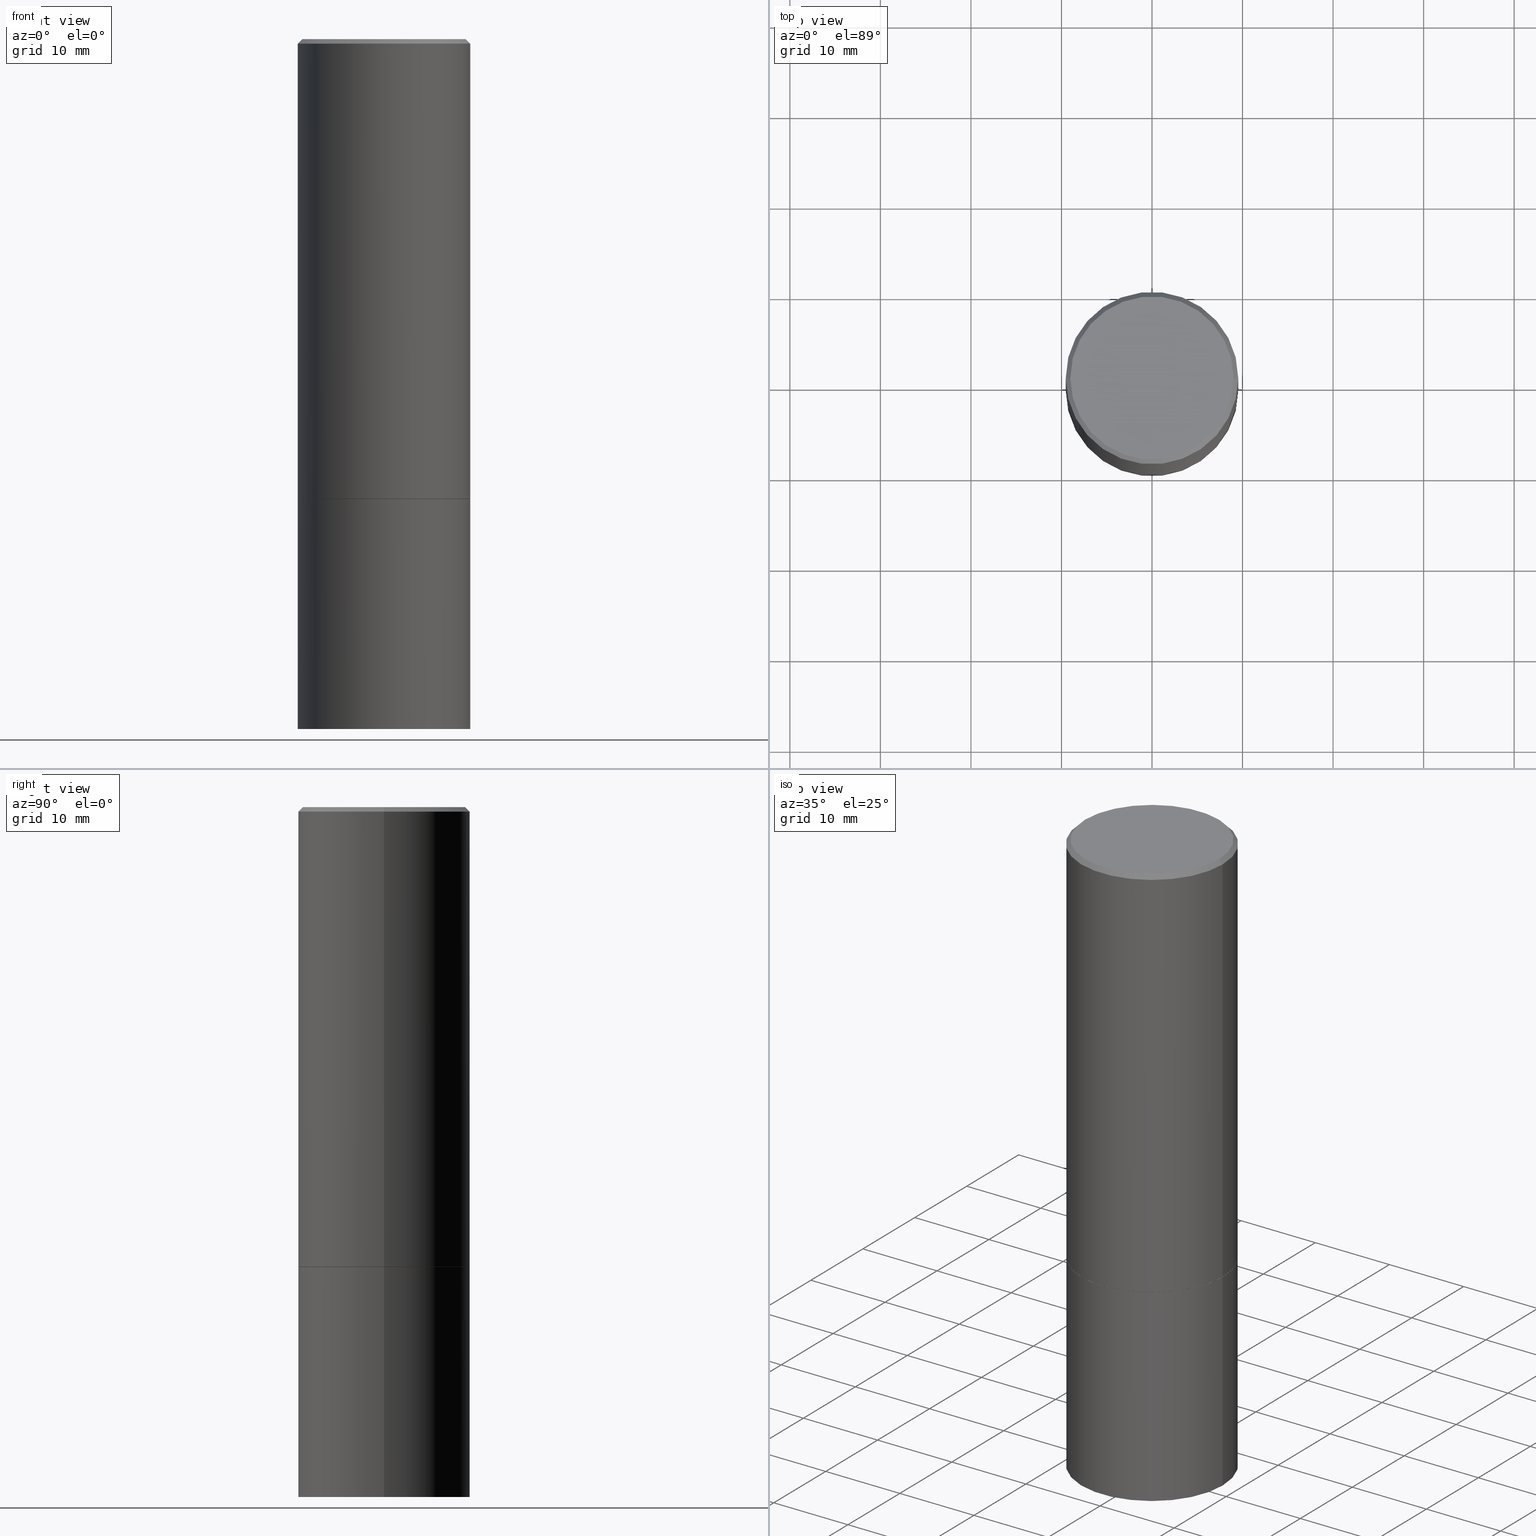
[diagram: canonical four-view strip — front | top / right | iso, engineering-drawing reading convention]
A machine part, canonical four-view strip (front | top / right | iso — engineering-drawing reading convention). The complete STEP part file that produces these views, byte-faithful:
ISO-10303-21;
HEADER;
FILE_DESCRIPTION (( 'STEP AP203' ),
    '1' );
FILE_NAME ('31662.STEP',
    '2024-02-27T13:14:22',
    ( '' ),
    ( '' ),
    'SwSTEP 2.0',
    'SolidWorks 2023',
    '' );
FILE_SCHEMA (( 'CONFIG_CONTROL_DESIGN' ));
ENDSEC;

DATA;
#1 = PRODUCT_RELATED_PRODUCT_CATEGORY ( 'detail', '', ( #355 ) ) ;
#2 = DIRECTION ( 'NONE',  ( 0.000000000000000000, 0.000000000000000000, 1.000000000000000000 ) ) ;
#3 = CARTESIAN_POINT ( 'NONE',  ( -0.3749999999999999445, -8.601151524617780590E-16, -1.999000000000000110 ) ) ;
#4 = CIRCLE ( 'NONE', #238, 0.3749999999999996669 ) ;
#5 = VECTOR ( 'NONE', #23, 39.37007874015748143 ) ;
#6 = APPLICATION_PROTOCOL_DEFINITION ( 'international standard', 'config_control_design', 1994, #280 ) ;
#7 = CARTESIAN_POINT ( 'NONE',  ( 0.000000000000000000, 0.000000000000000000, 0.000000000000000000 ) ) ;
#8 = DIRECTION ( 'NONE',  ( 1.000000000000000000, 0.000000000000000000, 0.000000000000000000 ) ) ;
#9 = EDGE_CURVE ( 'NONE', #49, #111, #161, .T. ) ;
#10 = DATE_AND_TIME ( #322, #129 ) ;
#11 = DIRECTION ( 'NONE',  ( 0.7071067811865472397, -7.319954787623254468E-15, -0.7071067811865477948 ) ) ;
#12 = PRODUCT_DEFINITION_FORMATION_WITH_SPECIFIED_SOURCE ( 'ANY', '', #355, .NOT_KNOWN. ) ;
#13 = ADVANCED_FACE ( 'NONE', ( #243 ), #357, .F. ) ;
#14 = DIRECTION ( 'NONE',  ( -2.445468806185136597E-29, 3.491481338843145583E-15, 1.000000000000000000 ) ) ;
#15 = AXIS2_PLACEMENT_3D ( 'NONE', #159, #262, #287 ) ;
#16 = ORIENTED_EDGE ( 'NONE', *, *, #123, .F. ) ;
#17 = CYLINDRICAL_SURFACE ( 'NONE', #15, 0.3749999999999998335 ) ;
#18 = EDGE_LOOP ( 'NONE', ( #45, #333, #269, #364 ) ) ;
#19 = FACE_OUTER_BOUND ( 'NONE', #244, .T. ) ;
#20 = ORIENTED_EDGE ( 'NONE', *, *, #199, .T. ) ;
#21 = ORIENTED_EDGE ( 'NONE', *, *, #165, .F. ) ;
#22 = APPROVAL_PERSON_ORGANIZATION ( #236, #145, #345 ) ;
#23 = DIRECTION ( 'NONE',  ( 0.7071067811864267805, -2.468850131080992517E-15, 0.7071067811866682540 ) ) ;
#24 = PERSON ( 'UNSPECIFIED', 'UNSPECIFIED', 'UNSPECIFIED', ('UNSPECIFIED'), ('UNSPECIFIED'), ('UNSPECIFIED') ) ;
#25 = EDGE_LOOP ( 'NONE', ( #304, #293, #299, #160 ) ) ;
#26 = FACE_OUTER_BOUND ( 'NONE', #77, .T. ) ;
#27 = EDGE_CURVE ( 'NONE', #143, #296, #29, .T. ) ;
#28 = CARTESIAN_POINT ( 'NONE',  ( 0.3749999999999996669, -2.642516375941185662E-15, -0.02000000000000007327 ) ) ;
#29 = CIRCLE ( 'NONE', #291, 0.3739999999999999991 ) ;
#30 = LINE ( 'NONE', #198, #38 ) ;
#31 = EDGE_CURVE ( 'NONE', #222, #49, #151, .T. ) ;
#32 = APPROVAL_DATE_TIME ( #36, #145 ) ;
#33 = PERSON_AND_ORGANIZATION ( #24, #323 ) ;
#34 = PERSON_AND_ORGANIZATION ( #24, #323 ) ;
#35 = LINE ( 'NONE', #356, #44 ) ;
#36 = DATE_AND_TIME ( #281, #218 ) ;
#37 = AXIS2_PLACEMENT_3D ( 'NONE', #224, #267, #216 ) ;
#38 = VECTOR ( 'NONE', #142, 39.37007874015748143 ) ;
#39 = CC_DESIGN_DATE_AND_TIME_ASSIGNMENT ( #117, #184, ( #56 ) ) ;
#40 = ORIENTED_EDGE ( 'NONE', *, *, #173, .F. ) ;
#41 = ORIENTED_EDGE ( 'NONE', *, *, #266, .T. ) ;
#42 = CARTESIAN_POINT ( 'NONE',  ( -1.043851414335219820E-46, 1.490343170380447200E-32, 4.268512490100411279E-18 ) ) ;
#43 = CC_DESIGN_PERSON_AND_ORGANIZATION_ASSIGNMENT ( #33, #285, ( #12 ) ) ;
#44 = VECTOR ( 'NONE', #11, 39.37007874015748143 ) ;
#45 = ORIENTED_EDGE ( 'NONE', *, *, #66, .T. ) ;
#46 = DIRECTION ( 'NONE',  ( 1.000000000000000000, -6.982962677686265922E-15, 4.876231632511992667E-29 ) ) ;
#47 = ORIENTED_EDGE ( 'NONE', *, *, #82, .F. ) ;
#48 = DIRECTION ( 'NONE',  ( 1.000000000000000000, -6.982962677686268288E-15, 0.000000000000000000 ) ) ;
#49 = VERTEX_POINT ( 'NONE', #344 ) ;
#50 = AXIS2_PLACEMENT_3D ( 'NONE', #352, #104, #70 ) ;
#51 = VERTEX_POINT ( 'NONE', #312 ) ;
#52 = CARTESIAN_POINT ( 'NONE',  ( 4.888492143564088712E-29, -6.979471196347448158E-15, -1.999000000000000110 ) ) ;
#53 = CARTESIAN_POINT ( 'NONE',  ( -0.3750000000000000555, -6.064168088007489246E-15, -2.000000000000000444 ) ) ;
#54 = DIRECTION ( 'NONE',  ( 1.000000000000000000, -6.982962677686266711E-15, 0.000000000000000000 ) ) ;
#55 = CARTESIAN_POINT ( 'NONE',  ( 2.618611004132423381E-15, 0.3749999999999895639, -3.000000000000001332 ) ) ;
#56 = PRODUCT_DEFINITION ( 'UNKNOWN', '', #12, #302 ) ;
#57 = DIRECTION ( 'NONE',  ( 1.000000000000000000, -6.982962677686268288E-15, 0.000000000000000000 ) ) ;
#58 = PERSON_AND_ORGANIZATION ( #24, #323 ) ;
#59 = FACE_OUTER_BOUND ( 'NONE', #113, .T. ) ;
#60 = PERSON_AND_ORGANIZATION ( #24, #323 ) ;
#61 = CYLINDRICAL_SURFACE ( 'NONE', #278, 0.3750000000000000555 ) ;
#62 = PRODUCT_DEFINITION_SHAPE ( 'NONE', 'NONE',  #56 ) ;
#63 = APPROVAL_ROLE ( '' ) ;
#64 = CONICAL_SURFACE ( 'NONE', #239, 0.3739999999999999991, 0.7853981633972775267 ) ;
#65 = DATE_TIME_ROLE ( 'classification_date' ) ;
#66 = EDGE_CURVE ( 'NONE', #222, #67, #152, .T. ) ;
#67 = VERTEX_POINT ( 'NONE', #91 ) ;
#68 = AXIS2_PLACEMENT_3D ( 'NONE', #315, #183, #258 ) ;
#69 = LOCAL_TIME ( 8, 14, 22.00000000000000000, #213 ) ;
#70 = DIRECTION ( 'NONE',  ( -1.000000000000000000, 6.982962677686265922E-15, -4.876176775795935793E-29 ) ) ;
#71 = ADVANCED_FACE ( 'NONE', ( #59 ), #319, .F. ) ;
#72 = CARTESIAN_POINT ( 'NONE',  ( 4.890937612370290675E-31, -6.982962677686316261E-17, -0.02000000000000007327 ) ) ;
#73 = DIRECTION ( 'NONE',  ( -1.000000000000000000, 6.982962677686265922E-15, -4.876176775795935793E-29 ) ) ;
#74 = CARTESIAN_POINT ( 'NONE',  ( 4.890937612370290675E-31, -6.982962677686316261E-17, -0.02000000000000007327 ) ) ;
#75 = AXIS2_PLACEMENT_3D ( 'NONE', #256, #176, #148 ) ;
#76 = AXIS2_PLACEMENT_3D ( 'NONE', #200, #314, #48 ) ;
#77 = EDGE_LOOP ( 'NONE', ( #135, #41, #220, #248 ) ) ;
#78 = MANIFOLD_SOLID_BREP ( 'Body-Move/Copy2[1]', #307 ) ;
#79 = CARTESIAN_POINT ( 'NONE',  ( 0.3739999999999999991, -9.594590719140957534E-15, -2.000000000000000444 ) ) ;
#80 = ORIENTED_EDGE ( 'NONE', *, *, #155, .T. ) ;
#81 =( CONVERSION_BASED_UNIT ( 'INCH', #175 ) LENGTH_UNIT ( ) NAMED_UNIT ( #240 ) );
#82 = EDGE_CURVE ( 'NONE', #296, #143, #185, .T. ) ;
#83 = ORIENTED_EDGE ( 'NONE', *, *, #264, .T. ) ;
#84 = APPLICATION_CONTEXT ( 'configuration controlled 3d designs of mechanical parts and assemblies' ) ;
#85 = FACE_OUTER_BOUND ( 'NONE', #25, .T. ) ;
#86 = VECTOR ( 'NONE', #310, 39.37007874015748143 ) ;
#87 = AXIS2_PLACEMENT_3D ( 'NONE', #99, #2, #8 ) ;
#88 = VERTEX_POINT ( 'NONE', #3 ) ;
#89 = CARTESIAN_POINT ( 'NONE',  ( -0.3739999999999999991, -4.325532845943518054E-15, -2.000000000000000444 ) ) ;
#90 = CARTESIAN_POINT ( 'NONE',  ( 4.890937612370274875E-29, -6.982962677686292743E-15, -2.000000000000000444 ) ) ;
#91 = CARTESIAN_POINT ( 'NONE',  ( -0.3750000000000000555, -6.064168088007489246E-15, -3.000000000000000444 ) ) ;
#92 = APPROVAL_DATE_TIME ( #10, #115 ) ;
#93 = FACE_OUTER_BOUND ( 'NONE', #301, .T. ) ;
#94 = ADVANCED_FACE ( 'NONE', ( #202 ), #61, .T. ) ;
#95 = SHAPE_DEFINITION_REPRESENTATION ( #62, #348 ) ;
#96 = CARTESIAN_POINT ( 'NONE',  ( -1.043851414335219820E-46, 1.490343170380447200E-32, 4.268512490100411279E-18 ) ) ;
#97 = CLOSED_SHELL ( 'NONE', ( #294, #338, #242, #128, #158, #354, #71, #13 ) ) ;
#98 = LOCAL_TIME ( 8, 14, 22.00000000000000000, #182 ) ;
#99 = CARTESIAN_POINT ( 'NONE',  ( 0.000000000000000000, 0.000000000000000000, 0.000000000000000000 ) ) ;
#100 = ADVANCED_FACE ( 'NONE', ( #284 ), #124, .T. ) ;
#101 = AXIS2_PLACEMENT_3D ( 'NONE', #55, #138, #116 ) ;
#102 = DIRECTION ( 'NONE',  ( 2.445468806185136597E-29, -3.491481338843145583E-15, -1.000000000000000000 ) ) ;
#103 = ORIENTED_EDGE ( 'NONE', *, *, #260, .F. ) ;
#104 = DIRECTION ( 'NONE',  ( 2.438088387897960049E-29, -3.491481338843145188E-15, -1.000000000000000000 ) ) ;
#105 = CARTESIAN_POINT ( 'NONE',  ( 2.478951750578621842E-15, 0.3549999999999996492, -1.237341619044265047E-15 ) ) ;
#106 = CARTESIAN_POINT ( 'NONE',  ( 0.3549999999999996492, -2.538996582575038287E-15, 4.268512490117958041E-18 ) ) ;
#107 = VERTEX_POINT ( 'NONE', #255 ) ;
#108 = ORIENTED_EDGE ( 'NONE', *, *, #31, .T. ) ;
#109 = LINE ( 'NONE', #225, #5 ) ;
#110 = EDGE_CURVE ( 'NONE', #107, #172, #235, .T. ) ;
#111 = VERTEX_POINT ( 'NONE', #53 ) ;
#112 = CARTESIAN_POINT ( 'NONE',  ( 7.336406418555409790E-29, -1.047444401652943635E-14, -3.000000000000000444 ) ) ;
#113 = EDGE_LOOP ( 'NONE', ( #47, #136 ) ) ;
#114 = DIRECTION ( 'NONE',  ( 1.000000000000000000, -6.982962677686264344E-15, 0.000000000000000000 ) ) ;
#115 = APPROVAL ( #325, 'UNSPECIFIED' ) ;
#116 = DIRECTION ( 'NONE',  ( -1.000000000000000000, 6.982962677686265922E-15, -4.876176775795935793E-29 ) ) ;
#117 = DATE_AND_TIME ( #122, #69 ) ;
#118 = PERSON_AND_ORGANIZATION ( #24, #323 ) ;
#119 = DIRECTION ( 'NONE',  ( -2.445468806185136597E-29, 3.491481338843145583E-15, 1.000000000000000000 ) ) ;
#120 = CONICAL_SURFACE ( 'NONE', #353, 0.3749999999999996669, 0.7853981633974479459 ) ;
#121 = CC_DESIGN_APPROVAL ( #115, ( #12 ) ) ;
#122 = CALENDAR_DATE ( 2024, 27, 2 ) ;
#123 = EDGE_CURVE ( 'NONE', #193, #107, #350, .T. ) ;
#124 = CYLINDRICAL_SURFACE ( 'NONE', #68, 0.3750000000000000555 ) ;
#125 = PERSON_AND_ORGANIZATION_ROLE ( 'classification_officer' ) ;
#126 = CALENDAR_DATE ( 2024, 27, 2 ) ;
#127 = PLANE ( 'NONE',  #50 ) ;
#128 = ADVANCED_FACE ( 'NONE', ( #19 ), #120, .T. ) ;
#129 = LOCAL_TIME ( 8, 14, 22.00000000000000000, #289 ) ;
#130 = EDGE_LOOP ( 'NONE', ( #335, #103 ) ) ;
#131 = UNCERTAINTY_MEASURE_WITH_UNIT (LENGTH_MEASURE( 1.000000000000000082E-05 ), #81, 'distance_accuracy_value', 'NONE');
#132 = CARTESIAN_POINT ( 'NONE',  ( 4.890937612370273754E-29, -6.982962677686291954E-15, -2.000000000000000444 ) ) ;
#133 = ORIENTED_EDGE ( 'NONE', *, *, #110, .F. ) ;
#134 = DIRECTION ( 'NONE',  ( 1.000000000000000000, -6.982962677686265922E-15, 4.876231632511992667E-29 ) ) ;
#135 = ORIENTED_EDGE ( 'NONE', *, *, #228, .T. ) ;
#136 = ORIENTED_EDGE ( 'NONE', *, *, #27, .F. ) ;
#137 = CC_DESIGN_PERSON_AND_ORGANIZATION_ASSIGNMENT ( #229, #288, ( #12 ) ) ;
#138 = DIRECTION ( 'NONE',  ( 2.438088387897960049E-29, -3.491481338843145188E-15, -1.000000000000000000 ) ) ;
#139 = VECTOR ( 'NONE', #180, 39.37007874015748143 ) ;
#140 = APPROVAL_PERSON_ORGANIZATION ( #34, #181, #63 ) ;
#141 = ORIENTED_EDGE ( 'NONE', *, *, #110, .T. ) ;
#142 = DIRECTION ( 'NONE',  ( -2.445468806185136877E-29, 3.491481338843145188E-15, 1.000000000000000000 ) ) ;
#143 = VERTEX_POINT ( 'NONE', #297 ) ;
#144 = DIRECTION ( 'NONE',  ( 1.000000000000000000, -6.982962677686264344E-15, 0.000000000000000000 ) ) ;
#145 = APPROVAL ( #179, 'UNSPECIFIED' ) ;
#146 = FACE_OUTER_BOUND ( 'NONE', #157, .T. ) ;
#147 = CIRCLE ( 'NONE', #254, 0.3549999999999996492 ) ;
#148 = DIRECTION ( 'NONE',  ( 1.000000000000000000, -6.982962677686265922E-15, 4.876176775795935793E-29 ) ) ;
#149 = DATE_AND_TIME ( #366, #98 ) ;
#150 = CARTESIAN_POINT ( 'NONE',  ( 7.336406418555409790E-29, -1.047444401652943635E-14, -3.000000000000000444 ) ) ;
#151 = LINE ( 'NONE', #233, #139 ) ;
#152 = CIRCLE ( 'NONE', #211, 0.3750000000000000555 ) ;
#153 =( GEOMETRIC_REPRESENTATION_CONTEXT ( 3 ) GLOBAL_UNCERTAINTY_ASSIGNED_CONTEXT ( ( #131 ) ) GLOBAL_UNIT_ASSIGNED_CONTEXT ( ( #81, #196, #305 ) ) REPRESENTATION_CONTEXT ( 'NONE', 'WORKASPACE' ) );
#154 = SECURITY_CLASSIFICATION_LEVEL ( 'unclassified' ) ;
#155 = EDGE_CURVE ( 'NONE', #172, #306, #4, .T. ) ;
#156 = AXIS2_PLACEMENT_3D ( 'NONE', #52, #174, #144 ) ;
#157 = EDGE_LOOP ( 'NONE', ( #16, #189, #20, #133 ) ) ;
#158 = ADVANCED_FACE ( 'NONE', ( #93 ), #17, .T. ) ;
#159 = CARTESIAN_POINT ( 'NONE',  ( 0.000000000000000000, 0.000000000000000000, 0.000000000000000000 ) ) ;
#160 = ORIENTED_EDGE ( 'NONE', *, *, #250, .F. ) ;
#161 = CIRCLE ( 'NONE', #37, 0.3750000000000000555 ) ;
#162 = DIRECTION ( 'NONE',  ( -2.445468806185136597E-29, 3.491481338843145583E-15, 1.000000000000000000 ) ) ;
#163 = ORIENTED_EDGE ( 'NONE', *, *, #192, .F. ) ;
#164 = DIRECTION ( 'NONE',  ( 1.000000000000000000, -6.982962677686266711E-15, 0.000000000000000000 ) ) ;
#165 = EDGE_CURVE ( 'NONE', #111, #49, #231, .T. ) ;
#166 = DIRECTION ( 'NONE',  ( -2.445468806185136597E-29, 3.491481338843145583E-15, 1.000000000000000000 ) ) ;
#167 = PLANE ( 'NONE',  #101 ) ;
#168 = EDGE_LOOP ( 'NONE', ( #251, #358 ) ) ;
#169 = DIRECTION ( 'NONE',  ( 2.445468806185136597E-29, -3.491481338843145583E-15, -1.000000000000000000 ) ) ;
#170 = CIRCLE ( 'NONE', #178, 0.3749999999999996669 ) ;
#171 = APPROVAL_PERSON_ORGANIZATION ( #58, #115, #203 ) ;
#172 = VERTEX_POINT ( 'NONE', #324 ) ;
#173 = EDGE_CURVE ( 'NONE', #193, #306, #35, .T. ) ;
#174 = DIRECTION ( 'NONE',  ( -2.445468806185136597E-29, 3.491481338843145583E-15, 1.000000000000000000 ) ) ;
#175 = LENGTH_MEASURE_WITH_UNIT ( LENGTH_MEASURE( 0.02539999999999999897 ), #252 );
#176 = DIRECTION ( 'NONE',  ( -2.438088387897960049E-29, 3.491481338843145188E-15, 1.000000000000000000 ) ) ;
#177 = DIRECTION ( 'NONE',  ( -2.445468806185136597E-29, 3.491481338843145583E-15, 1.000000000000000000 ) ) ;
#178 = AXIS2_PLACEMENT_3D ( 'NONE', #74, #191, #164 ) ;
#179 = APPROVAL_STATUS ( 'not_yet_approved' ) ;
#180 = DIRECTION ( 'NONE',  ( -2.445468806185136877E-29, 3.491481338843145188E-15, 1.000000000000000000 ) ) ;
#181 = APPROVAL ( #321, 'UNSPECIFIED' ) ;
#182 = COORDINATED_UNIVERSAL_TIME_OFFSET ( 5, 0, .BEHIND. ) ;
#183 = DIRECTION ( 'NONE',  ( -2.445468806185136597E-29, 3.491481338843145583E-15, 1.000000000000000000 ) ) ;
#184 = DATE_TIME_ROLE ( 'creation_date' ) ;
#185 = CIRCLE ( 'NONE', #298, 0.3739999999999999991 ) ;
#186 = ADVANCED_FACE ( 'NONE', ( #188 ), #127, .F. ) ;
#187 = SECURITY_CLASSIFICATION ( '', '', #154 ) ;
#188 = FACE_OUTER_BOUND ( 'NONE', #337, .T. ) ;
#189 = ORIENTED_EDGE ( 'NONE', *, *, #173, .T. ) ;
#190 = AXIS2_PLACEMENT_3D ( 'NONE', #279, #270, #303 ) ;
#191 = DIRECTION ( 'NONE',  ( -2.445468806185136597E-29, 3.491481338843145583E-15, 1.000000000000000000 ) ) ;
#192 = EDGE_CURVE ( 'NONE', #107, #193, #147, .T. ) ;
#193 = VERTEX_POINT ( 'NONE', #106 ) ;
#194 = LINE ( 'NONE', #89, #212 ) ;
#195 = ORIENTED_EDGE ( 'NONE', *, *, #320, .T. ) ;
#196 =( NAMED_UNIT ( * ) PLANE_ANGLE_UNIT ( ) SI_UNIT ( $, .RADIAN. ) );
#197 = ORIENTED_EDGE ( 'NONE', *, *, #266, .F. ) ;
#198 = CARTESIAN_POINT ( 'NONE',  ( -0.3750000000000000555, 2.664535259100376091E-15, -1.844600658845589598E-29 ) ) ;
#199 = EDGE_CURVE ( 'NONE', #306, #172, #170, .T. ) ;
#200 = CARTESIAN_POINT ( 'NONE',  ( 4.890937612370274875E-29, -6.982962677686292743E-15, -2.000000000000000444 ) ) ;
#201 = FACE_OUTER_BOUND ( 'NONE', #363, .T. ) ;
#202 = FACE_OUTER_BOUND ( 'NONE', #18, .T. ) ;
#203 = APPROVAL_ROLE ( '' ) ;
#204 = CC_DESIGN_PERSON_AND_ORGANIZATION_ASSIGNMENT ( #207, #261, ( #355 ) ) ;
#205 = VECTOR ( 'NONE', #221, 39.37007874015748143 ) ;
#206 = DIRECTION ( 'NONE',  ( -2.445468806185136597E-29, 3.491481338843145583E-15, 1.000000000000000000 ) ) ;
#207 = PERSON_AND_ORGANIZATION ( #24, #323 ) ;
#208 = ORIENTED_EDGE ( 'NONE', *, *, #9, .T. ) ;
#209 = APPROVAL_DATE_TIME ( #149, #181 ) ;
#210 = DIRECTION ( 'NONE',  ( -2.445468806185136597E-29, 3.491481338843145583E-15, 1.000000000000000000 ) ) ;
#211 = AXIS2_PLACEMENT_3D ( 'NONE', #150, #206, #317 ) ;
#212 = VECTOR ( 'NONE', #334, 39.37007874015748143 ) ;
#213 = COORDINATED_UNIVERSAL_TIME_OFFSET ( 5, 0, .BEHIND. ) ;
#214 = AXIS2_PLACEMENT_3D ( 'NONE', #132, #210, #327 ) ;
#215 = DIRECTION ( 'NONE',  ( -1.000000000000000000, 6.982962677686266711E-15, 0.000000000000000000 ) ) ;
#216 = DIRECTION ( 'NONE',  ( 1.000000000000000000, -6.982962677686266711E-15, 0.000000000000000000 ) ) ;
#217 = ORIENTED_EDGE ( 'NONE', *, *, #250, .T. ) ;
#218 = LOCAL_TIME ( 8, 14, 22.00000000000000000, #347 ) ;
#219 = CARTESIAN_POINT ( 'NONE',  ( 0.3750000000000000555, -1.309305502066178795E-14, -3.000000000000000444 ) ) ;
#220 = ORIENTED_EDGE ( 'NONE', *, *, #199, .F. ) ;
#221 = DIRECTION ( 'NONE',  ( -2.445468806185136877E-29, 3.491481338843145188E-15, 1.000000000000000000 ) ) ;
#222 = VERTEX_POINT ( 'NONE', #219 ) ;
#223 = DIRECTION ( 'NONE',  ( -1.000000000000000000, 6.982962677686266711E-15, 0.000000000000000000 ) ) ;
#224 = CARTESIAN_POINT ( 'NONE',  ( 4.890937612370273754E-29, -6.982962677686291954E-15, -2.000000000000000444 ) ) ;
#225 = CARTESIAN_POINT ( 'NONE',  ( 0.3739999999999999991, -9.594590719140957534E-15, -2.000000000000000444 ) ) ;
#226 = CONICAL_SURFACE ( 'NONE', #300, 0.3749999999999996669, 0.7853981633974479459 ) ;
#227 = CARTESIAN_POINT ( 'NONE',  ( 4.888492143564088712E-29, -6.979471196347448158E-15, -1.999000000000000110 ) ) ;
#228 = EDGE_CURVE ( 'NONE', #51, #88, #292, .T. ) ;
#229 = PERSON_AND_ORGANIZATION ( #24, #323 ) ;
#230 = APPLICATION_PROTOCOL_DEFINITION ( 'international standard', 'config_control_design', 1994, #84 ) ;
#231 = CIRCLE ( 'NONE', #214, 0.3750000000000000555 ) ;
#232 = CC_DESIGN_APPROVAL ( #181, ( #56 ) ) ;
#233 = CARTESIAN_POINT ( 'NONE',  ( 0.3750000000000000555, -2.618611004132350016E-15, 1.828566290923476203E-29 ) ) ;
#234 = DATE_AND_TIME ( #126, #330 ) ;
#235 = LINE ( 'NONE', #346, #86 ) ;
#236 = PERSON_AND_ORGANIZATION ( #24, #323 ) ;
#237 = DIRECTION ( 'NONE',  ( -2.445468806185136597E-29, 3.491481338843145583E-15, 1.000000000000000000 ) ) ;
#238 = AXIS2_PLACEMENT_3D ( 'NONE', #72, #237, #245 ) ;
#239 = AXIS2_PLACEMENT_3D ( 'NONE', #90, #249, #247 ) ;
#240 = DIMENSIONAL_EXPONENTS ( 1.000000000000000000, 0.000000000000000000, 0.000000000000000000, 0.000000000000000000, 0.000000000000000000, 0.000000000000000000, 0.000000000000000000 ) ;
#241 = ORIENTED_EDGE ( 'NONE', *, *, #27, .T. ) ;
#242 = ADVANCED_FACE ( 'NONE', ( #146 ), #226, .T. ) ;
#243 = FACE_OUTER_BOUND ( 'NONE', #168, .T. ) ;
#244 = EDGE_LOOP ( 'NONE', ( #40, #163, #141, #80 ) ) ;
#245 = DIRECTION ( 'NONE',  ( 1.000000000000000000, -6.982962677686266711E-15, 0.000000000000000000 ) ) ;
#246 = EDGE_LOOP ( 'NONE', ( #360, #275, #108, #21 ) ) ;
#247 = DIRECTION ( 'NONE',  ( 1.000000000000000000, -6.982962677686268288E-15, 0.000000000000000000 ) ) ;
#248 = ORIENTED_EDGE ( 'NONE', *, *, #264, .F. ) ;
#249 = DIRECTION ( 'NONE',  ( -2.445468806185136597E-29, 3.491481338843145583E-15, 1.000000000000000000 ) ) ;
#250 = EDGE_CURVE ( 'NONE', #296, #51, #109, .T. ) ;
#251 = ORIENTED_EDGE ( 'NONE', *, *, #192, .T. ) ;
#252 =( LENGTH_UNIT ( ) NAMED_UNIT ( * ) SI_UNIT ( $, .METRE. ) );
#253 = CARTESIAN_POINT ( 'NONE',  ( 0.3749999999999998335, -2.618611004132348439E-15, 1.828566290923475082E-29 ) ) ;
#254 = AXIS2_PLACEMENT_3D ( 'NONE', #42, #162, #134 ) ;
#255 = CARTESIAN_POINT ( 'NONE',  ( -0.3549999999999996492, 2.513866563967053097E-15, 4.268512490082953109E-18 ) ) ;
#256 = CARTESIAN_POINT ( 'NONE',  ( 4.890937612370274875E-29, -6.982962677686292743E-15, -2.000000000000000444 ) ) ;
#257 = AXIS2_PLACEMENT_3D ( 'NONE', #227, #341, #114 ) ;
#258 = DIRECTION ( 'NONE',  ( 1.000000000000000000, -6.982962677686265922E-15, 4.876176775795935793E-29 ) ) ;
#259 = COORDINATED_UNIVERSAL_TIME_OFFSET ( 5, 0, .BEHIND. ) ;
#260 = EDGE_CURVE ( 'NONE', #67, #222, #343, .T. ) ;
#261 = PERSON_AND_ORGANIZATION_ROLE ( 'design_owner' ) ;
#262 = DIRECTION ( 'NONE',  ( -2.445468806185136597E-29, 3.491481338843145583E-15, 1.000000000000000000 ) ) ;
#263 = ORIENTED_EDGE ( 'NONE', *, *, #155, .F. ) ;
#264 = EDGE_CURVE ( 'NONE', #51, #306, #362, .T. ) ;
#265 = ORIENTED_EDGE ( 'NONE', *, *, #165, .T. ) ;
#266 = EDGE_CURVE ( 'NONE', #88, #172, #331, .T. ) ;
#267 = DIRECTION ( 'NONE',  ( -2.445468806185136597E-29, 3.491481338843145583E-15, 1.000000000000000000 ) ) ;
#268 = ORIENTED_EDGE ( 'NONE', *, *, #332, .F. ) ;
#269 = ORIENTED_EDGE ( 'NONE', *, *, #9, .F. ) ;
#270 = DIRECTION ( 'NONE',  ( -2.445468806185136597E-29, 3.491481338843145583E-15, 1.000000000000000000 ) ) ;
#271 = ORIENTED_EDGE ( 'NONE', *, *, #320, .F. ) ;
#272 = ADVANCED_FACE ( 'NONE', ( #274 ), #167, .T. ) ;
#273 = AXIS2_PLACEMENT_3D ( 'NONE', #105, #329, #73 ) ;
#274 = FACE_OUTER_BOUND ( 'NONE', #130, .T. ) ;
#275 = ORIENTED_EDGE ( 'NONE', *, *, #260, .T. ) ;
#276 = CARTESIAN_POINT ( 'NONE',  ( -0.3749999999999998335, 2.664535259100374514E-15, -1.844600658845588757E-29 ) ) ;
#277 = DIRECTION ( 'NONE',  ( 1.000000000000000000, -6.982962677686265922E-15, 4.876176775795935793E-29 ) ) ;
#278 = AXIS2_PLACEMENT_3D ( 'NONE', #7, #119, #277 ) ;
#279 = CARTESIAN_POINT ( 'NONE',  ( 0.000000000000000000, 0.000000000000000000, 0.000000000000000000 ) ) ;
#280 = APPLICATION_CONTEXT ( 'configuration controlled 3d designs of mechanical parts and assemblies' ) ;
#281 = CALENDAR_DATE ( 2024, 27, 2 ) ;
#282 = CARTESIAN_POINT ( 'NONE',  ( 4.890937612370274875E-29, -6.982962677686292743E-15, -2.000000000000000444 ) ) ;
#283 = PERSON_AND_ORGANIZATION_ROLE ( 'creator' ) ;
#284 = FACE_OUTER_BOUND ( 'NONE', #246, .T. ) ;
#285 = PERSON_AND_ORGANIZATION_ROLE ( 'design_supplier' ) ;
#286 = VECTOR ( 'NONE', #365, 39.37007874015748143 ) ;
#287 = DIRECTION ( 'NONE',  ( 1.000000000000000000, -6.982962677686265922E-15, 4.876176775795935793E-29 ) ) ;
#288 = PERSON_AND_ORGANIZATION_ROLE ( 'creator' ) ;
#289 = COORDINATED_UNIVERSAL_TIME_OFFSET ( 5, 0, .BEHIND. ) ;
#290 = EDGE_CURVE ( 'NONE', #67, #111, #30, .T. ) ;
#291 = AXIS2_PLACEMENT_3D ( 'NONE', #328, #166, #340 ) ;
#292 = CIRCLE ( 'NONE', #257, 0.3750000000000000555 ) ;
#293 = ORIENTED_EDGE ( 'NONE', *, *, #332, .T. ) ;
#294 = ADVANCED_FACE ( 'NONE', ( #85 ), #64, .T. ) ;
#295 = CARTESIAN_POINT ( 'NONE',  ( 4.890937612370290675E-31, -6.982962677686316261E-17, -0.02000000000000007327 ) ) ;
#296 = VERTEX_POINT ( 'NONE', #79 ) ;
#297 = CARTESIAN_POINT ( 'NONE',  ( -0.3739999999999999991, -4.320234391595294863E-15, -2.000000000000000444 ) ) ;
#298 = AXIS2_PLACEMENT_3D ( 'NONE', #282, #342, #57 ) ;
#299 = ORIENTED_EDGE ( 'NONE', *, *, #228, .F. ) ;
#300 = AXIS2_PLACEMENT_3D ( 'NONE', #336, #169, #223 ) ;
#301 = EDGE_LOOP ( 'NONE', ( #197, #195, #83, #263 ) ) ;
#302 = DESIGN_CONTEXT ( 'detailed design', #84, 'design' ) ;
#303 = DIRECTION ( 'NONE',  ( 1.000000000000000000, -6.982962677686265922E-15, 4.876176775795935793E-29 ) ) ;
#304 = ORIENTED_EDGE ( 'NONE', *, *, #82, .T. ) ;
#305 =( NAMED_UNIT ( * ) SI_UNIT ( $, .STERADIAN. ) SOLID_ANGLE_UNIT ( ) );
#306 = VERTEX_POINT ( 'NONE', #28 ) ;
#307 = CLOSED_SHELL ( 'NONE', ( #94, #272, #186, #100 ) ) ;
#308 = CONICAL_SURFACE ( 'NONE', #76, 0.3739999999999999991, 0.7853981633972775267 ) ;
#309 = CYLINDRICAL_SURFACE ( 'NONE', #190, 0.3749999999999998335 ) ;
#310 = DIRECTION ( 'NONE',  ( -0.7071067811865472397, 2.468850131082253905E-15, -0.7071067811865477948 ) ) ;
#311 = CC_DESIGN_DATE_AND_TIME_ASSIGNMENT ( #234, #65, ( #187 ) ) ;
#312 = CARTESIAN_POINT ( 'NONE',  ( 0.3750000000000000555, -9.598082200479797386E-15, -1.999000000000000110 ) ) ;
#313 = MANIFOLD_SOLID_BREP ( 'Body-Move/Copy2[2]', #97 ) ;
#314 = DIRECTION ( 'NONE',  ( -2.445468806185136597E-29, 3.491481338843145583E-15, 1.000000000000000000 ) ) ;
#315 = CARTESIAN_POINT ( 'NONE',  ( 0.000000000000000000, 0.000000000000000000, 0.000000000000000000 ) ) ;
#316 = CIRCLE ( 'NONE', #156, 0.3750000000000000555 ) ;
#317 = DIRECTION ( 'NONE',  ( 1.000000000000000000, -6.982962677686266711E-15, 0.000000000000000000 ) ) ;
#318 = MECHANICAL_CONTEXT ( 'NONE', #280, 'mechanical' ) ;
#319 = PLANE ( 'NONE',  #75 ) ;
#320 = EDGE_CURVE ( 'NONE', #88, #51, #316, .T. ) ;
#321 = APPROVAL_STATUS ( 'not_yet_approved' ) ;
#322 = CALENDAR_DATE ( 2024, 27, 2 ) ;
#323 = ORGANIZATION ( 'UNSPECIFIED', 'UNSPECIFIED', '' ) ;
#324 = CARTESIAN_POINT ( 'NONE',  ( -0.3749999999999996669, 2.548781377355484352E-15, -0.02000000000000007327 ) ) ;
#325 = APPROVAL_STATUS ( 'not_yet_approved' ) ;
#326 = CC_DESIGN_APPROVAL ( #145, ( #187 ) ) ;
#327 = DIRECTION ( 'NONE',  ( 1.000000000000000000, -6.982962677686266711E-15, 0.000000000000000000 ) ) ;
#328 = CARTESIAN_POINT ( 'NONE',  ( 4.890937612370274875E-29, -6.982962677686292743E-15, -2.000000000000000444 ) ) ;
#329 = DIRECTION ( 'NONE',  ( 2.438088387897960049E-29, -3.491481338843145188E-15, -1.000000000000000000 ) ) ;
#330 = LOCAL_TIME ( 8, 14, 22.00000000000000000, #259 ) ;
#331 = LINE ( 'NONE', #276, #286 ) ;
#332 = EDGE_CURVE ( 'NONE', #143, #88, #194, .T. ) ;
#333 = ORIENTED_EDGE ( 'NONE', *, *, #290, .T. ) ;
#334 = DIRECTION ( 'NONE',  ( -0.7071067811864267805, 7.493145998869918709E-15, 0.7071067811866682540 ) ) ;
#335 = ORIENTED_EDGE ( 'NONE', *, *, #66, .F. ) ;
#336 = CARTESIAN_POINT ( 'NONE',  ( 4.890937612370290675E-31, -6.982962677686316261E-17, -0.02000000000000007327 ) ) ;
#337 = EDGE_LOOP ( 'NONE', ( #208, #265 ) ) ;
#338 = ADVANCED_FACE ( 'NONE', ( #26 ), #309, .T. ) ;
#339 = AXIS2_PLACEMENT_3D ( 'NONE', #96, #14, #46 ) ;
#340 = DIRECTION ( 'NONE',  ( 1.000000000000000000, -6.982962677686268288E-15, 0.000000000000000000 ) ) ;
#341 = DIRECTION ( 'NONE',  ( -2.445468806185136597E-29, 3.491481338843145583E-15, 1.000000000000000000 ) ) ;
#342 = DIRECTION ( 'NONE',  ( -2.445468806185136597E-29, 3.491481338843145583E-15, 1.000000000000000000 ) ) ;
#343 = CIRCLE ( 'NONE', #351, 0.3750000000000000555 ) ;
#344 = CARTESIAN_POINT ( 'NONE',  ( 0.3750000000000000555, -9.601573681818641971E-15, -2.000000000000000444 ) ) ;
#345 = APPROVAL_ROLE ( '' ) ;
#346 = CARTESIAN_POINT ( 'NONE',  ( -0.3749999999999996669, 2.548781377355484352E-15, -0.02000000000000007327 ) ) ;
#347 = COORDINATED_UNIVERSAL_TIME_OFFSET ( 5, 0, .BEHIND. ) ;
#348 = ADVANCED_BREP_SHAPE_REPRESENTATION ( '31662', ( #78, #313, #87 ), #153 ) ;
#349 = CC_DESIGN_PERSON_AND_ORGANIZATION_ASSIGNMENT ( #60, #283, ( #56 ) ) ;
#350 = CIRCLE ( 'NONE', #339, 0.3549999999999996492 ) ;
#351 = AXIS2_PLACEMENT_3D ( 'NONE', #112, #177, #54 ) ;
#352 = CARTESIAN_POINT ( 'NONE',  ( 2.618611004132398926E-15, 0.3749999999999930611, -2.000000000000001776 ) ) ;
#353 = AXIS2_PLACEMENT_3D ( 'NONE', #295, #102, #215 ) ;
#354 = ADVANCED_FACE ( 'NONE', ( #201 ), #308, .T. ) ;
#355 = PRODUCT ( '31662', '31662', '', ( #318 ) ) ;
#356 = CARTESIAN_POINT ( 'NONE',  ( 0.3749999999999996669, -2.642516375941185662E-15, -0.02000000000000007327 ) ) ;
#357 = PLANE ( 'NONE',  #273 ) ;
#358 = ORIENTED_EDGE ( 'NONE', *, *, #123, .T. ) ;
#359 = CC_DESIGN_PERSON_AND_ORGANIZATION_ASSIGNMENT ( #118, #125, ( #187 ) ) ;
#360 = ORIENTED_EDGE ( 'NONE', *, *, #290, .F. ) ;
#361 = CC_DESIGN_SECURITY_CLASSIFICATION ( #187, ( #12 ) ) ;
#362 = LINE ( 'NONE', #253, #205 ) ;
#363 = EDGE_LOOP ( 'NONE', ( #268, #241, #217, #271 ) ) ;
#364 = ORIENTED_EDGE ( 'NONE', *, *, #31, .F. ) ;
#365 = DIRECTION ( 'NONE',  ( -2.445468806185136877E-29, 3.491481338843145188E-15, 1.000000000000000000 ) ) ;
#366 = CALENDAR_DATE ( 2024, 27, 2 ) ;
ENDSEC;
END-ISO-10303-21;
